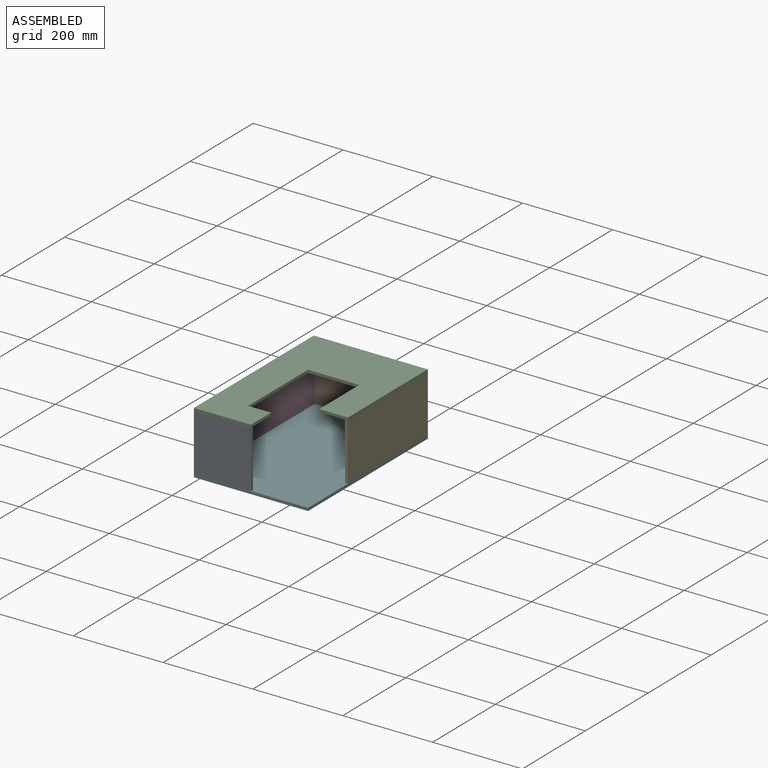
[diagram: assembled view]
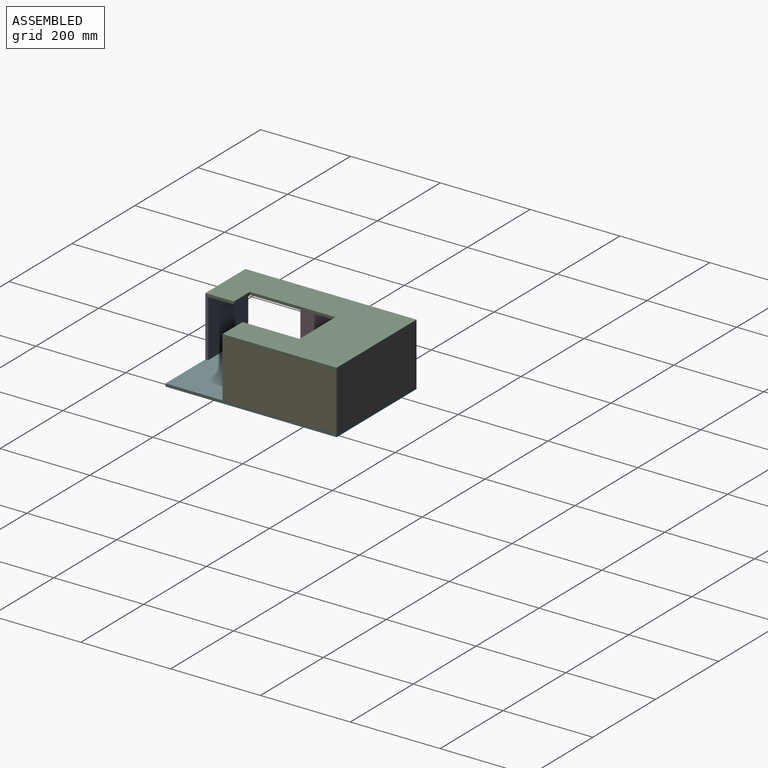
[diagram: assembled view, second angle]
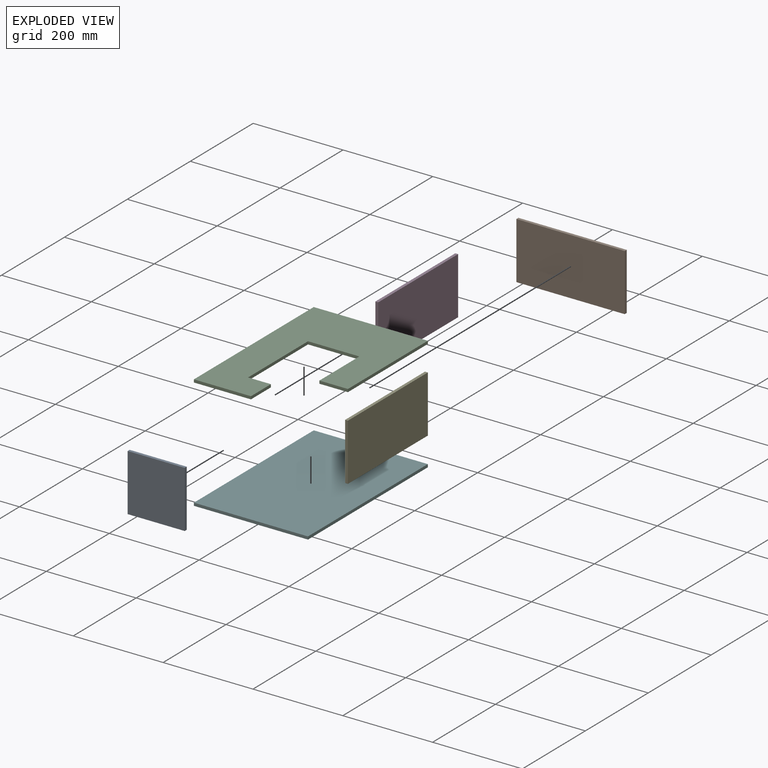
[diagram: exploded view]
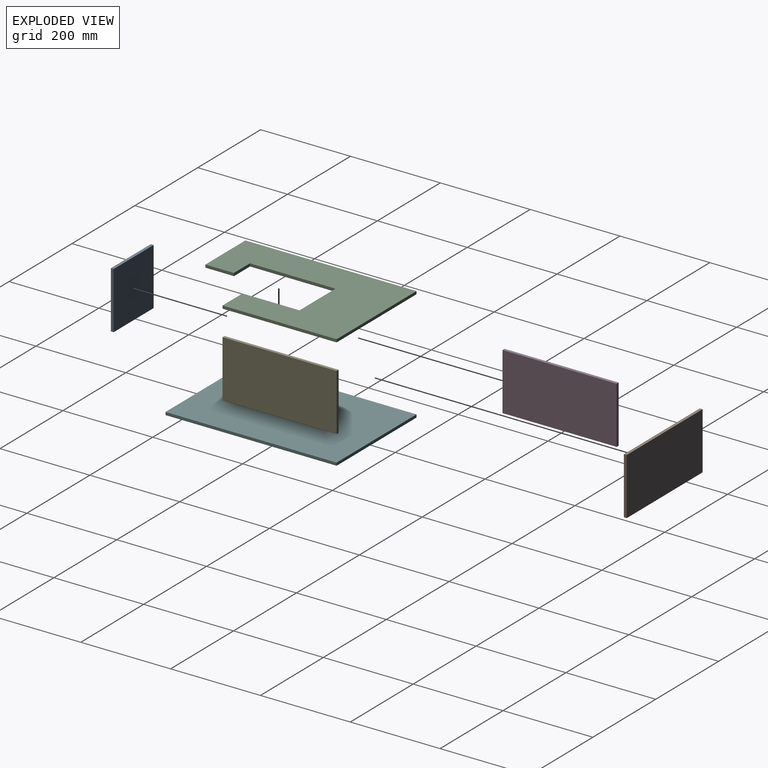
[diagram: exploded view, second angle]
ASSEMBLY  parts=6 mates=16
PART A: 6 faces, bbox 127x6.4x127 mm
  f0: plane 127x6.35mm, normal (0,0,1), area 806.5mm2, adj f1,f3,f4,f5
  f1: plane 127x6.35mm, normal (-1,0,0), area 806.5mm2, adj f0,f2,f4,f5
  f2: plane 127x6.35mm, normal (0,0,-1), area 806.5mm2, adj f1,f3,f4,f5
  f3: plane 127x6.35mm, normal (1,0,0), area 806.5mm2, adj f0,f2,f4,f5
  f4: plane 127x127mm, normal (0,-1,0), area 16129mm2, adj f0,f1,f2,f3
  f5: plane 127x127mm, normal (0,1,0), area 16129mm2, adj f0,f1,f2,f3
PART B: 6 faces, bbox 241.3x6.4x127 mm
  f0: plane 241.3x6.35mm, normal (0,0,1), area 1532.3mm2, adj f2,f3,f4,f5
  f1: plane 241.3x6.35mm, normal (0,0,-1), area 1532.3mm2, adj f2,f3,f4,f5
  f2: plane 241.3x127mm, normal (0,-1,0), area 30645.1mm2, adj f0,f1,f4,f5
  f3: plane 241.3x127mm, normal (0,1,0), area 30645.1mm2, adj f0,f1,f4,f5
  f4: plane 127x6.35mm, normal (-1,0,0), area 806.5mm2, adj f0,f1,f2,f3
  f5: plane 127x6.35mm, normal (1,0,0), area 806.5mm2, adj f0,f1,f2,f3
PART C: 12 faces, bbox 254x381x6.4 mm
  f0: plane 254x6.35mm, normal (1,0,0), area 1612.9mm2, adj f1,f9,f10,f11
  f1: plane 254x6.35mm, normal (0,1,0), area 1612.9mm2, adj f0,f2,f10,f11
  f2: plane 381x6.35mm, normal (-1,0,0), area 2419.3mm2, adj f1,f3,f10,f11
  f3: plane 127x6.35mm, normal (0,-1,0), area 806.5mm2, adj f2,f4,f10,f11
  f4: plane 63.5x6.35mm, normal (1,0,0), area 403.2mm2, adj f3,f5,f10,f11
  f5: plane 50.8x6.35mm, normal (0,1,0), area 322.6mm2, adj f4,f6,f10,f11
  f6: plane 190.5x6.35mm, normal (1,0,0), area 1209.7mm2, adj f5,f7,f10,f11
  f7: plane 114.3x6.35mm, normal (0,-1,0), area 725.8mm2, adj f6,f8,f10,f11
  f8: plane 127x6.35mm, normal (-1,0,0), area 806.5mm2, adj f7,f9,f10,f11
  f9: plane 63.5x6.35mm, normal (0,-1,0), area 403.2mm2, adj f0,f8,f10,f11
  f10: plane 381x254mm, normal (0,0,1), area 62903.1mm2, adj f0,f1,f2,f3,f4,f5,f6,f7
  f11: plane 381x254mm, normal (0,0,-1), area 62903.1mm2, adj f0,f1,f2,f3,f4,f5,f6,f7
PART D: 6 faces, bbox 6.4x254x127 mm
  f0: plane 127x6.35mm, normal (0,1,0), area 806.5mm2, adj f1,f3,f4,f5
  f1: plane 254x6.35mm, normal (0,0,1), area 1612.9mm2, adj f0,f2,f4,f5
  f2: plane 127x6.35mm, normal (0,-1,0), area 806.5mm2, adj f1,f3,f4,f5
  f3: plane 254x6.35mm, normal (0,0,-1), area 1612.9mm2, adj f0,f2,f4,f5
  f4: plane 254x127mm, normal (1,0,0), area 32258mm2, adj f0,f1,f2,f3
  f5: plane 254x127mm, normal (-1,0,0), area 32258mm2, adj f0,f1,f2,f3
PART E: 6 faces, bbox 6.4x254x127 mm
  f0: plane 254x6.35mm, normal (0,0,1), area 1612.9mm2, adj f1,f3,f4,f5
  f1: plane 127x6.35mm, normal (0,-1,0), area 806.5mm2, adj f0,f2,f4,f5
  f2: plane 254x6.35mm, normal (0,0,-1), area 1612.9mm2, adj f1,f3,f4,f5
  f3: plane 127x6.35mm, normal (0,1,0), area 806.5mm2, adj f0,f2,f4,f5
  f4: plane 254x127mm, normal (1,0,0), area 32258mm2, adj f0,f1,f2,f3
  f5: plane 254x127mm, normal (-1,0,0), area 32258mm2, adj f0,f1,f2,f3
PART F: 6 faces, bbox 254x381x6.4 mm
  f0: plane 254x6.35mm, normal (0,1,0), area 1612.9mm2, adj f1,f3,f4,f5
  f1: plane 381x6.35mm, normal (-1,0,0), area 2419.3mm2, adj f0,f2,f4,f5
  f2: plane 254x6.35mm, normal (0,-1,0), area 1612.9mm2, adj f1,f3,f4,f5
  f3: plane 381x6.35mm, normal (1,0,0), area 2419.3mm2, adj f0,f2,f4,f5
  f4: plane 381x254mm, normal (0,0,1), area 96774mm2, adj f0,f1,f2,f3
  f5: plane 381x254mm, normal (0,0,-1), area 96774mm2, adj f0,f1,f2,f3
PLACE A t=(448.89,-20.34,762.92)mm
PLACE B t=(493.72,354.31,802.9)mm
PLACE C t=(448.71,16.87,923.29)mm
PLACE D t=(267.19,145.48,790.09)mm
PLACE E t=(514.84,176.39,863.32)mm
PLACE F t=(529.34,-8.43,789.94)mm
MATE planar D.f0 <-> F.f0  axis (0,1,0) through (270.36,354.31,859.79)mm
MATE planar B.f4 <-> D.f4  axis (-1,0,0) through (273.54,351.13,859.79)mm
MATE planar C.f0 <-> E.f4  axis (1,0,0) through (521.19,227.31,926.47)mm
MATE planar A.f4 <-> F.f2  axis (0,-1,0) through (330.69,-26.69,859.79)mm
MATE planar E.f3 <-> B.f2  axis (0,1,0) through (518.01,354.31,859.79)mm
MATE planar D.f5 <-> F.f1  axis (-1,0,0) through (267.19,227.31,859.79)mm
MATE planar E.f4 <-> F.f3  axis (1,0,0) through (521.19,227.31,859.79)mm
MATE planar E.f2 <-> F.f4  axis (0,0,-1) through (518.01,227.31,796.29)mm
MATE planar C.f3 <-> A.f4  axis (0,-1,0) through (330.69,-26.69,926.47)mm
MATE planar B.f3 <-> F.f0  axis (0,1,0) through (394.19,354.31,859.79)mm
MATE planar C.f11 <-> D.f1  axis (0,0,-1) through (377.74,201.25,923.29)mm
MATE planar E.f3 <-> B.f3  axis (0,1,0) through (518.01,354.31,859.79)mm
MATE planar A.f1 <-> F.f1  axis (-1,0,0) through (267.19,-23.52,859.79)mm
MATE planar D.f3 <-> F.f4  axis (0,0,-1) through (270.36,227.31,796.29)mm
MATE planar A.f2 <-> F.f4  axis (0,0,-1) through (330.69,-23.52,796.29)mm
MATE planar B.f1 <-> F.f4  axis (0,0,-1) through (394.19,351.13,796.29)mm
